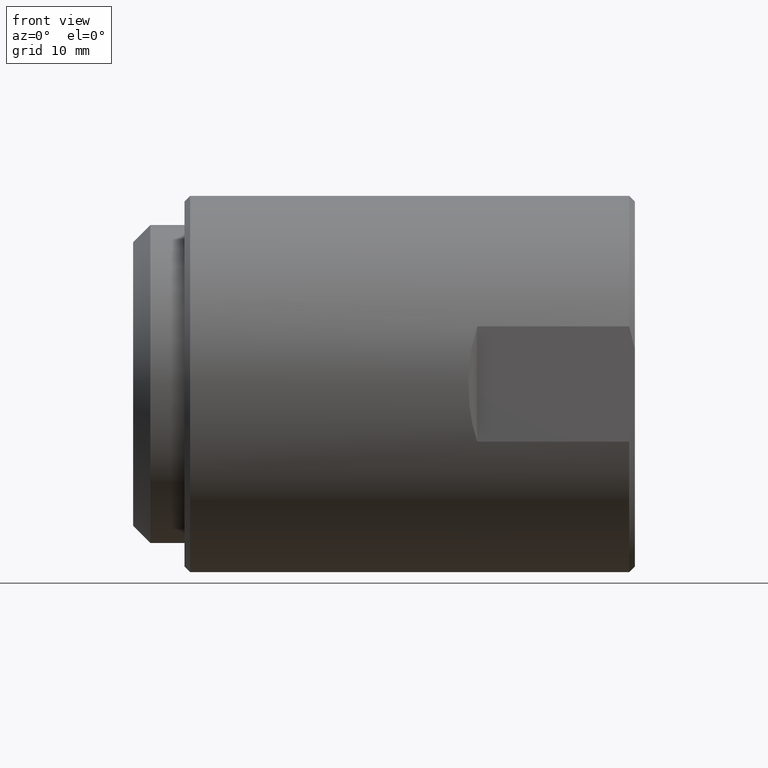
[diagram: clean part render]
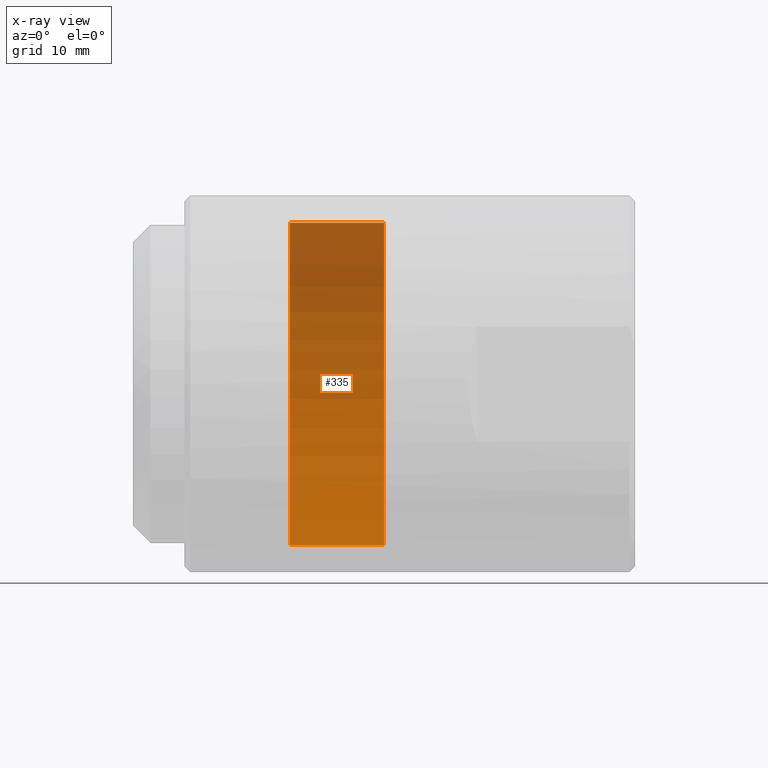
[diagram: x-ray — body ghosted, one internal face saturated and labeled with its STEP entity id]
A machine part, front view, then the same camera in x-ray: the body is ghosted and one INTERNAL B-rep face — a face not visible from any outside direction — is saturated and labeled: STEP entity #335.
In plain terms, the highlighted cylindrical surface (partial cylindrical patch) has radius 14.2748 mm, axis along (-1, -0, -0).
Its self-contained STEP definition (entity closure, byte-faithful):
#75 = DIRECTION ( 'NONE',  ( 0.0000000000000000000, 0.0000000000000000000, 1.000000000000000000 ) ) ;
#300 = DIRECTION ( 'NONE',  ( -1.000000000000000000, -0.0000000000000000000, -0.0000000000000000000 ) ) ;
#335 = ADVANCED_FACE ( 'NONE', ( #8180 ), #4517, .F. ) ;
#740 = CARTESIAN_POINT ( 'NONE',  ( 0.4375000000000000000, 0.0000000000000000000, 0.5620000000000000551 ) ) ;
#879 = AXIS2_PLACEMENT_3D ( 'NONE', #6559, #300, #75 ) ;
#1273 = LINE ( 'NONE', #8381, #9017 ) ;
#1818 = DIRECTION ( 'NONE',  ( -1.000000000000000000, -0.0000000000000000000, -0.0000000000000000000 ) ) ;
#2413 = VERTEX_POINT ( 'NONE', #7206 ) ;
#2470 = VERTEX_POINT ( 'NONE', #4685 ) ;
#2957 = EDGE_CURVE ( 'NONE', #3142, #2470, #3867, .T. ) ;
#3142 = VERTEX_POINT ( 'NONE', #740 ) ;
#3250 = EDGE_CURVE ( 'NONE', #2470, #7870, #1273, .T. ) ;
#3466 = ORIENTED_EDGE ( 'NONE', *, *, #9098, .T. ) ;
#3589 = LINE ( 'NONE', #5928, #8538 ) ;
#3867 = CIRCLE ( 'NONE', #10356, 0.5620000000000000551 ) ;
#4320 = ORIENTED_EDGE ( 'NONE', *, *, #3250, .F. ) ;
#4517 = CYLINDRICAL_SURFACE ( 'NONE', #7364, 0.5620000000000000551 ) ;
#4685 = CARTESIAN_POINT ( 'NONE',  ( 0.4375000000000000000, 6.882515011208124576E-17, -0.5620000000000000551 ) ) ;
#4733 = DIRECTION ( 'NONE',  ( 0.0000000000000000000, 0.0000000000000000000, 1.000000000000000000 ) ) ;
#5573 = CARTESIAN_POINT ( 'NONE',  ( 0.1094999999999999724, 6.882515011208124576E-17, -0.5620000000000000551 ) ) ;
#5928 = CARTESIAN_POINT ( 'NONE',  ( 0.0000000000000000000, 0.0000000000000000000, 0.5620000000000000551 ) ) ;
#6464 = EDGE_CURVE ( 'NONE', #2413, #7870, #10776, .T. ) ;
#6512 = EDGE_LOOP ( 'NONE', ( #4320, #8443, #3466, #9938 ) ) ;
#6559 = CARTESIAN_POINT ( 'NONE',  ( 0.1094999999999999724, 0.0000000000000000000, 0.0000000000000000000 ) ) ;
#7206 = CARTESIAN_POINT ( 'NONE',  ( 0.1094999999999999724, 0.0000000000000000000, 0.5620000000000000551 ) ) ;
#7364 = AXIS2_PLACEMENT_3D ( 'NONE', #8052, #10791, #11032 ) ;
#7870 = VERTEX_POINT ( 'NONE', #5573 ) ;
#8052 = CARTESIAN_POINT ( 'NONE',  ( 0.0000000000000000000, 0.0000000000000000000, 0.0000000000000000000 ) ) ;
#8180 = FACE_OUTER_BOUND ( 'NONE', #6512, .T. ) ;
#8381 = CARTESIAN_POINT ( 'NONE',  ( 0.0000000000000000000, 6.882515011208124576E-17, -0.5620000000000000551 ) ) ;
#8443 = ORIENTED_EDGE ( 'NONE', *, *, #2957, .F. ) ;
#8538 = VECTOR ( 'NONE', #1818, 39.37007874015748143 ) ;
#9017 = VECTOR ( 'NONE', #10340, 39.37007874015748143 ) ;
#9098 = EDGE_CURVE ( 'NONE', #3142, #2413, #3589, .T. ) ;
#9938 = ORIENTED_EDGE ( 'NONE', *, *, #6464, .T. ) ;
#10169 = DIRECTION ( 'NONE',  ( -1.000000000000000000, -0.0000000000000000000, -0.0000000000000000000 ) ) ;
#10340 = DIRECTION ( 'NONE',  ( -1.000000000000000000, -0.0000000000000000000, -0.0000000000000000000 ) ) ;
#10356 = AXIS2_PLACEMENT_3D ( 'NONE', #11246, #10169, #4733 ) ;
#10776 = CIRCLE ( 'NONE', #879, 0.5620000000000000551 ) ;
#10791 = DIRECTION ( 'NONE',  ( -1.000000000000000000, -0.0000000000000000000, -0.0000000000000000000 ) ) ;
#11032 = DIRECTION ( 'NONE',  ( 0.0000000000000000000, 0.0000000000000000000, 1.000000000000000000 ) ) ;
#11246 = CARTESIAN_POINT ( 'NONE',  ( 0.4375000000000000000, 0.0000000000000000000, 0.0000000000000000000 ) ) ;